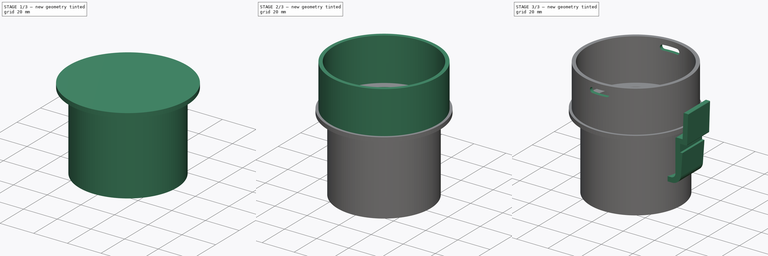
[diagram: build sequence overview — one tinted view per stage of 3, left to right]
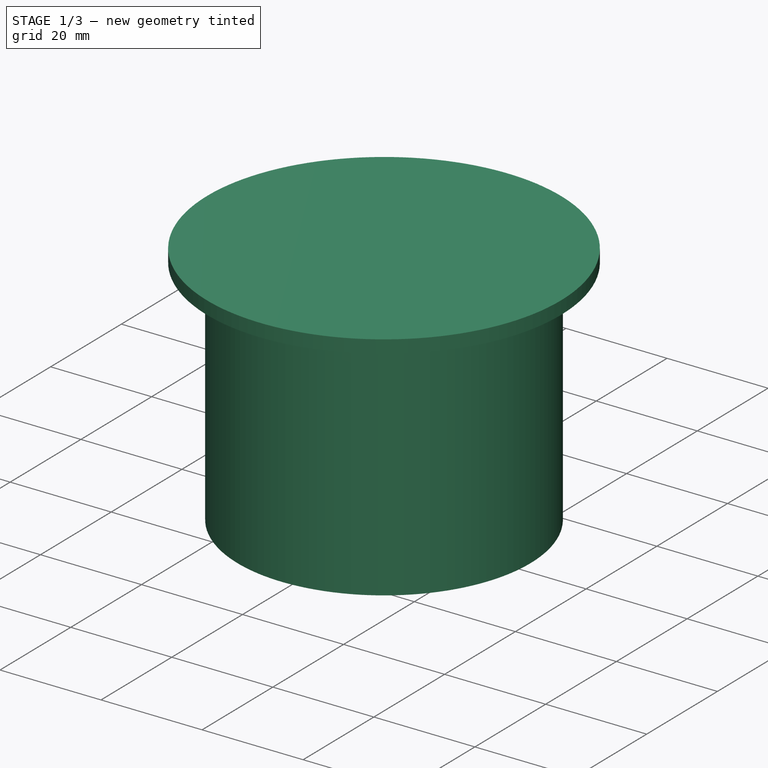
[diagram: stage 1 of 3 — iso view after this stage's code; geometry added in this stage tinted green]
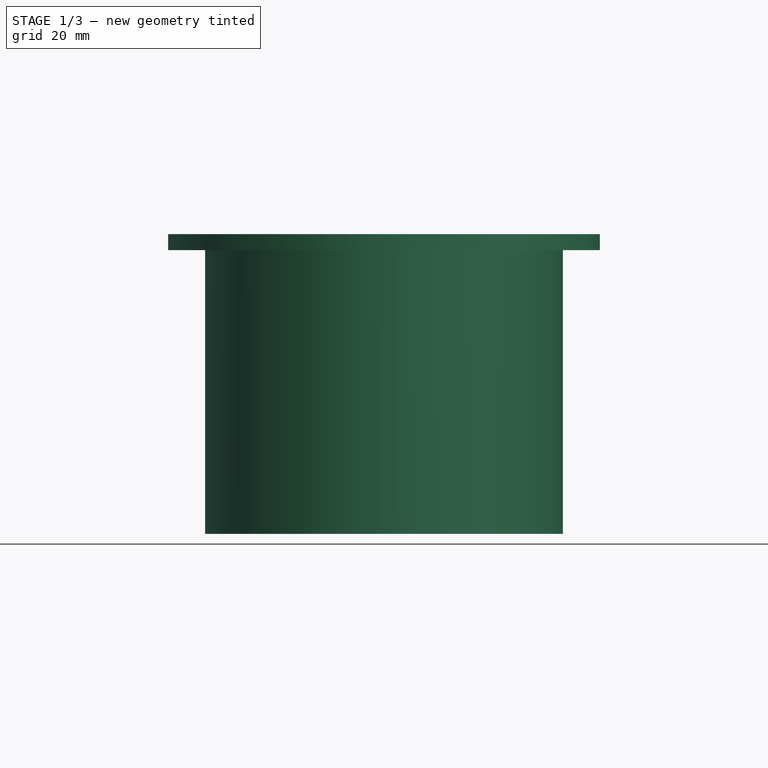
[diagram: stage 1 of 3 — front view after this stage's code; geometry added in this stage tinted green]
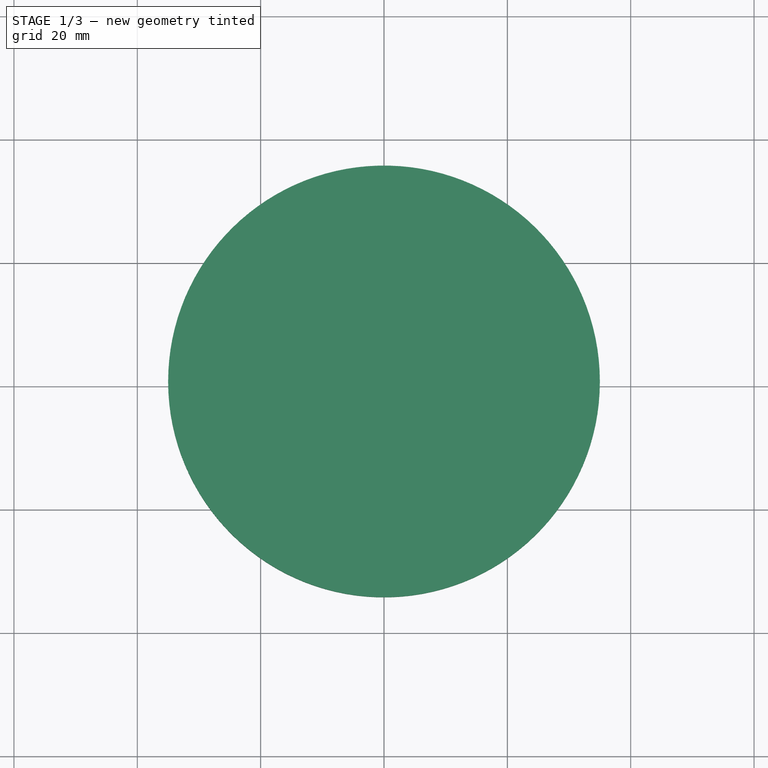
[diagram: stage 1 of 3 — top view after this stage's code; geometry added in this stage tinted green]
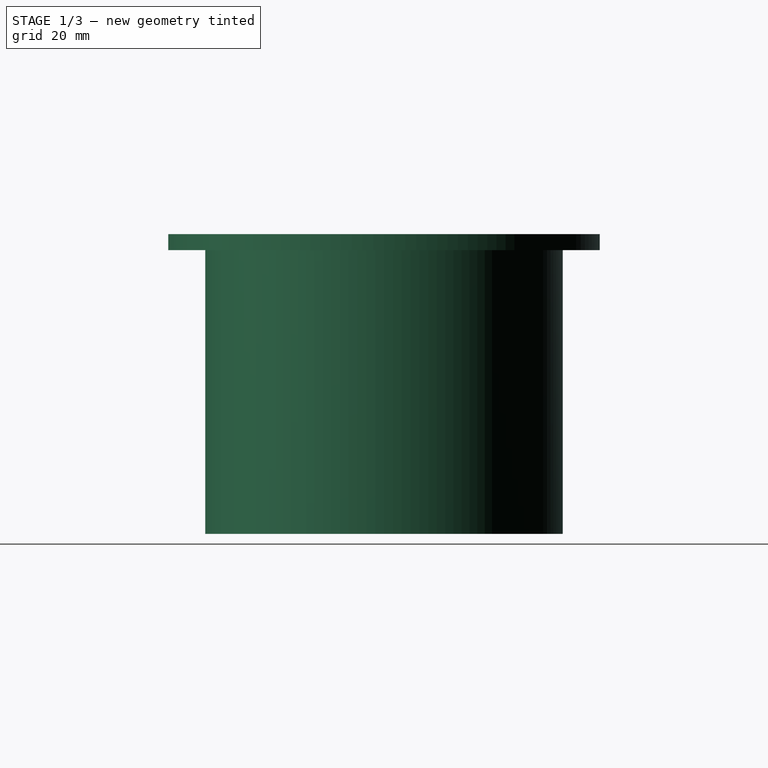
[diagram: stage 1 of 3 — right view after this stage's code; geometry added in this stage tinted green]
FCSTD DOCUMENT  (FreeCAD 0.21R33771 (Git))
Label: VacuumHoseConnector
License: All rights reserved
LicenseURL: https://en.wikipedia.org/wiki/All_rights_reserved
objects: Sketcher::SketchObject×7, PartDesign::Pad×4, PartDesign::Pocket×3, PartDesign::Body×1
note: 22 computed .brp shape members not serialized (recipe doc carries the construction recipe); baked Part::Feature solids carry a one-line shape summary decoded from their .brp

FEATURE [Sketcher::SketchObject] Sketch
  FullyConstrained = true
  MapMode = 5
  Support = -> [XY_Plane]
  sketch-geometry (1):
    g0: Circle CenterX=0 CenterY=0 CenterZ=0 NormalX=0 NormalY=0 NormalZ=1 AngleXU=0 Radius=29
  constraints (2):
    c: Coincident(g0,g-1)
    c: Radius(g0) = 29
FEATURE [PartDesign::Pad] Pad
  Direction = (0,0,1)
  Length = 46
  Length2 = 10
  Profile = -> Sketch
  ReferenceAxis = -> Sketch [N_Axis]
  Type = 0
FEATURE [Sketcher::SketchObject] Sketch001
  FullyConstrained = true
  MapMode = 5
  Placement = pos=(0,0,46) rot=(0,0,1;0rad)
  Support = -> [Pad]
  sketch-geometry (1):
    g0: Circle CenterX=0 CenterY=0 CenterZ=0 NormalX=0 NormalY=0 NormalZ=1 AngleXU=0 Radius=35
  constraints (2):
    c: Coincident(g0,g-1)
    c: Radius(g0) = 35
FEATURE [PartDesign::Pad] Pad001
  BaseFeature = -> Pad
  Direction = (0,0,1)
  Length = 2.6
  Length2 = 10
  Profile = -> Sketch001
  ReferenceAxis = -> Sketch001 [N_Axis]
  Type = 0
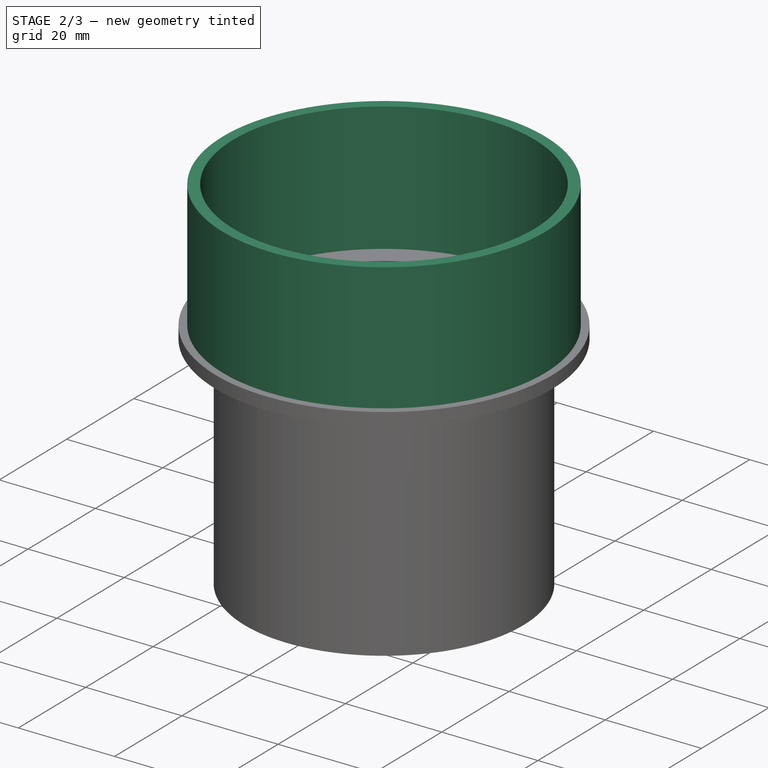
[diagram: stage 2 of 3 — iso view after this stage's code; geometry added in this stage tinted green]
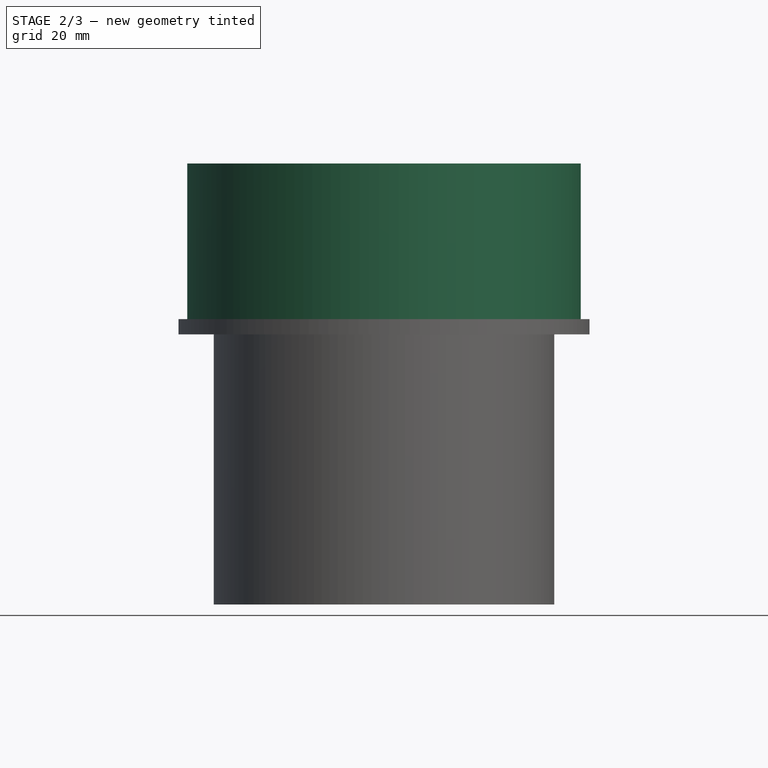
[diagram: stage 2 of 3 — front view after this stage's code; geometry added in this stage tinted green]
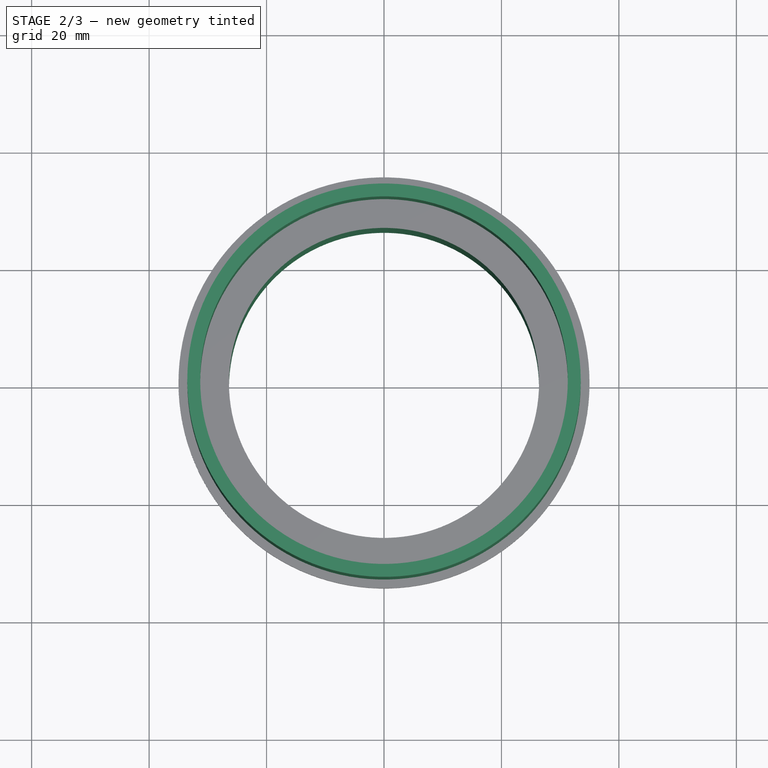
[diagram: stage 2 of 3 — top view after this stage's code; geometry added in this stage tinted green]
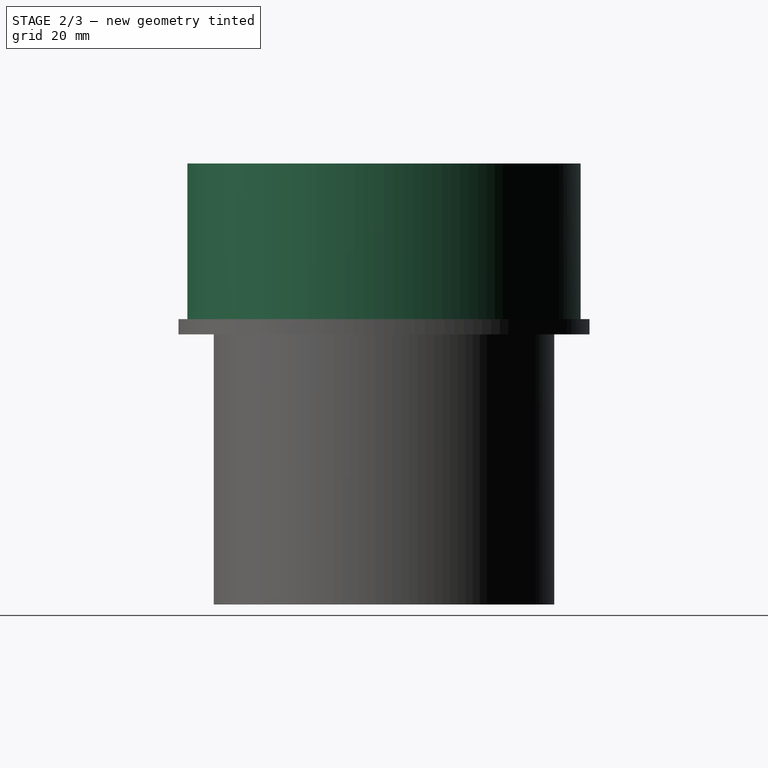
[diagram: stage 2 of 3 — right view after this stage's code; geometry added in this stage tinted green]
FEATURE [Sketcher::SketchObject] Sketch002
  FullyConstrained = true
  MapMode = 5
  Placement = pos=(0,0,48.6) rot=(0,0,1;0rad)
  Support = -> [Pad001]
  sketch-geometry (1):
    g0: Circle CenterX=0 CenterY=0 CenterZ=0 NormalX=0 NormalY=0 NormalZ=1 AngleXU=0 Radius=33.5
  constraints (2):
    c: Coincident(g0,g-1)
    c: Radius(g0) = 33.5
FEATURE [PartDesign::Pad] Pad002
  BaseFeature = -> Pad001
  Direction = (0,0,1)
  Length = 26.5
  Length2 = 10
  Profile = -> Sketch002
  ReferenceAxis = -> Sketch002 [N_Axis]
  Type = 0
FEATURE [Sketcher::SketchObject] Sketch003
  FullyConstrained = true
  MapMode = 5
  Placement = pos=(0,0,0) rot=(1,0,0;3.14159rad)
  Support = -> [Pad002]
  sketch-geometry (1):
    g0: Circle CenterX=0 CenterY=0 CenterZ=0 NormalX=0 NormalY=0 NormalZ=1 AngleXU=0 Radius=26.4
  constraints (2):
    c: Coincident(g0,g-1)
    c: Radius(g0) = 26.4
FEATURE [PartDesign::Pocket] Pocket
  BaseFeature = -> Pad002
  Direction = (0,0,1)
  Length = 5
  Length2 = 5
  Profile = -> Sketch003
  ReferenceAxis = -> Sketch003 [N_Axis]
  Type = 1
FEATURE [Sketcher::SketchObject] Sketch004
  FullyConstrained = true
  MapMode = 5
  Placement = pos=(0,0,75.1) rot=(0,0,1;0rad)
  Support = -> [Pocket]
  sketch-geometry (1):
    g0: Circle CenterX=0 CenterY=0 CenterZ=0 NormalX=0 NormalY=0 NormalZ=1 AngleXU=0 Radius=31.3
  constraints (2):
    c: Coincident(g0,g-1)
    c: Radius(g0) = 31.3
FEATURE [PartDesign::Pocket] Pocket001
  BaseFeature = -> Pocket
  Direction = (0,0,-1)
  Length = 26.75
  Length2 = 5
  Profile = -> Sketch004
  ReferenceAxis = -> Sketch004 [N_Axis]
  Type = 0
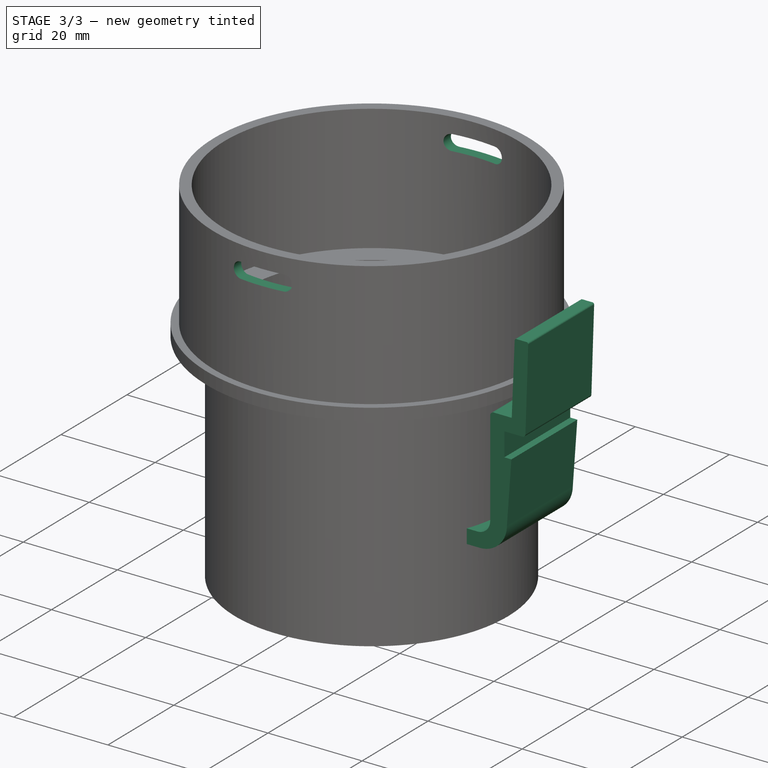
[diagram: stage 3 of 3 — iso view after this stage's code; geometry added in this stage tinted green]
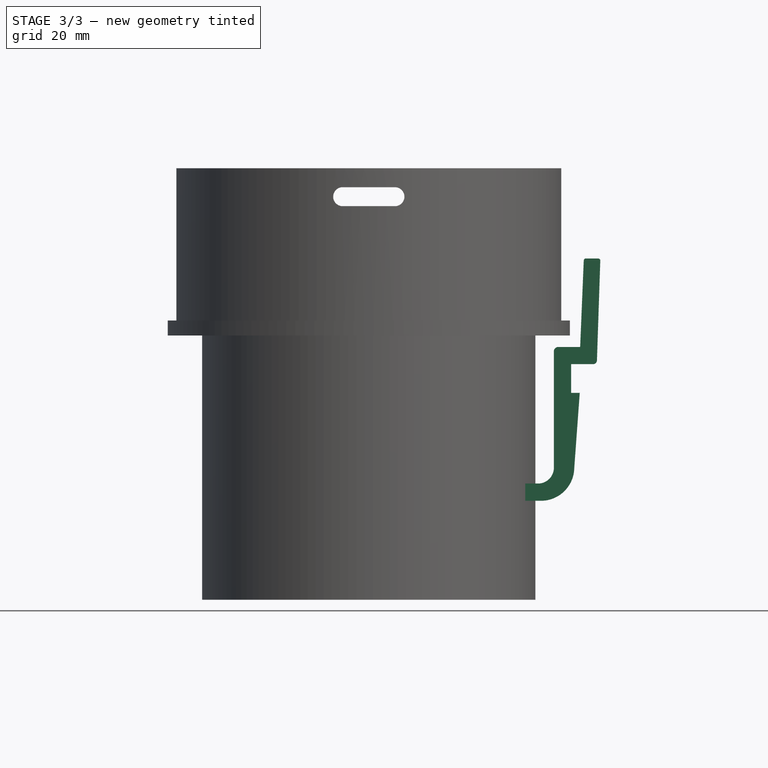
[diagram: stage 3 of 3 — front view after this stage's code; geometry added in this stage tinted green]
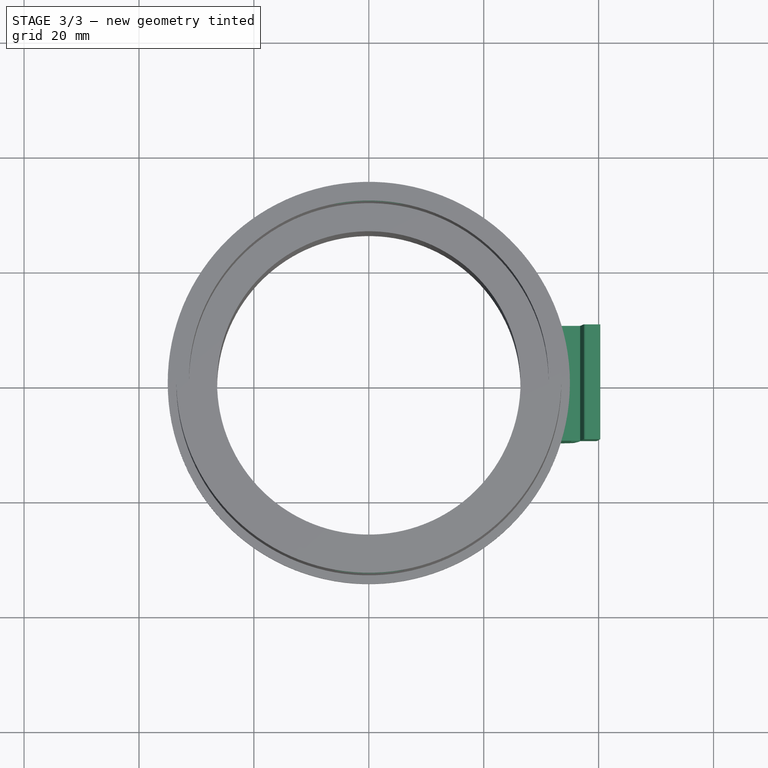
[diagram: stage 3 of 3 — top view after this stage's code; geometry added in this stage tinted green]
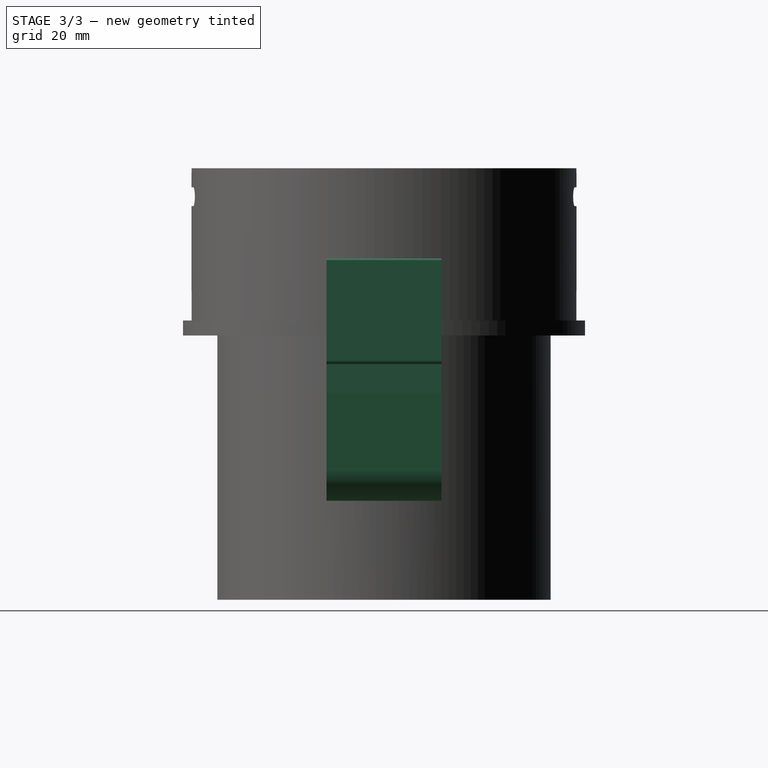
[diagram: stage 3 of 3 — right view after this stage's code; geometry added in this stage tinted green]
FEATURE [Sketcher::SketchObject] Sketch005
  ExternalGeometry = -> [Pocket001]
  FullyConstrained = false
  MapMode = 5
  Placement = pos=(0,0,0) rot=(1,0,0;1.5708rad)
  Support = -> [XZ_Plane]
  sketch-geometry (7):
    g0: ArcOfCircle CenterX=-4.55 CenterY=70.15 CenterZ=0 NormalX=0 NormalY=0 NormalZ=1 AngleXU=0 Radius=1.65 StartAngle=1.5708 EndAngle=4.71239
    g1: ArcOfCircle CenterX=4.55 CenterY=70.15 CenterZ=0 NormalX=0 NormalY=0 NormalZ=1 AngleXU=0 Radius=1.65 StartAngle=4.71239 EndAngle=7.85398
    g2: LineSegment StartX=-4.55 StartY=68.5 StartZ=0 EndX=4.55 EndY=68.5 EndZ=0
    g3: LineSegment StartX=4.55 StartY=71.8 StartZ=0 EndX=-4.55 EndY=71.8 EndZ=0
    g4: LineSegment StartX=-0.00341175 StartY=75.1 StartZ=0 EndX=-0.00341175 EndY=71.8 EndZ=0
    g5: LineSegment StartX=-6.2 StartY=70.15 StartZ=0 EndX=6.2 EndY=70.15 EndZ=0
    g6: LineSegment StartX=-4.55 StartY=71.8 StartZ=0 EndX=-4.55 EndY=68.5 EndZ=0
  constraints (18):
    c: Tangent(g0,g2) = -1.5708
    c: Tangent(g2,g1) = -1.5708
    c: Tangent(g1,g3) = -1.5708
    c: Tangent(g3,g0) = -1.5708
    c: Equal(g0,g1)
    c: PointOnObject(g4,g-3)
    c: PointOnObject(g4,g3)
    c: Vertical(g4)
    c: DistanceY(g4,g4) = 3.3
    c: PointOnObject(g5,g0)
    c: PointOnObject(g5,g1)
    c: Horizontal(g5)
    c: PointOnObject(g0,g5)
    c: Distance(g5) = 12.4
    c: Coincident(g6,g0)
    c: Equal(g4,g6)
    c: Coincident(g6,g0)
    c: Symmetric(g0,g1,g-2)
FEATURE [PartDesign::Pocket] Pocket002
  BaseFeature = -> Pocket001
  Direction = (0,1,2e-16)
  Length = 250
  Length2 = 5
  Midplane = true
  Profile = -> Sketch005
  ReferenceAxis = -> Sketch005 [N_Axis]
  Type = 1
FEATURE [Sketcher::SketchObject] Sketch006
  ExternalGeometry = -> [Pocket002]
  FullyConstrained = false
  MapMode = 5
  Placement = pos=(0,0,0) rot=(1,0,0;1.5708rad)
  Support = -> [XZ_Plane]
  sketch-geometry (21):
    g0: LineSegment StartX=26.7129 StartY=17.2233 StartZ=0 EndX=29.9535 EndY=17.2233 EndZ=0
    g1: LineSegment StartX=32.2096 StartY=43.2402 StartZ=0 EndX=32.2096 EndY=22.9821 EndZ=0
    g2: LineSegment StartX=29.4508 StartY=20.2233 StartZ=0 EndX=26.7129 EndY=20.2233 EndZ=0
    g3: LineSegment StartX=26.7129 StartY=20.2233 StartZ=0 EndX=26.7129 EndY=17.2233 EndZ=0
    g4: LineSegment StartX=29 StartY=18 StartZ=0 EndX=34 EndY=18 EndZ=0
    g5: LineSegment StartX=32.9694 StartY=44 StartZ=0 EndX=36.7834 EndY=44 EndZ=0
    g6: LineSegment StartX=36.7834 StartY=44 StartZ=0 EndX=37.4088 EndY=59.0491 EndZ=0
    g7: LineSegment StartX=37.7664 StartY=59.3922 StartZ=0 EndX=39.9316 EndY=59.3922 EndZ=0
    g8: LineSegment StartX=40.2869 StartY=59.0247 StartZ=0 EndX=39.7046 EndY=41.647 EndZ=0
    g9: LineSegment StartX=39.0355 StartY=41 StartZ=0 EndX=35.2105 EndY=41 EndZ=0
    g10: LineSegment StartX=36.7834 StartY=44 StartZ=0 EndX=39.7834 EndY=44 EndZ=0
    g11: LineSegment StartX=35.2105 StartY=44 StartZ=0 EndX=35.2105 EndY=41 EndZ=0
    g12: ArcOfCircle CenterX=32.9694 CenterY=43.2402 CenterZ=0 NormalX=0 NormalY=0 NormalZ=1 AngleXU=0 Radius=0.759792 StartAngle=1.5708 EndAngle=3.14159
    g13: ArcOfCircle CenterX=39.0355 CenterY=41.6694 CenterZ=0 NormalX=0 NormalY=0 NormalZ=1 AngleXU=0 Radius=0.669433 StartAngle=4.71239 EndAngle=6.24969
    g14: ArcOfCircle CenterX=29.4508 CenterY=22.9821 CenterZ=0 NormalX=0 NormalY=0 NormalZ=1 AngleXU=0 Radius=2.75883 StartAngle=4.71239 EndAngle=6.28319
    g15: ArcOfCircle CenterX=39.9316 CenterY=59.0367 CenterZ=0 NormalX=0 NormalY=0 NormalZ=1 AngleXU=0 Radius=0.355521 StartAngle=6.24969 EndAngle=7.85398
    g16: ArcOfCircle CenterX=37.7664 CenterY=59.0343 CenterZ=0 NormalX=0 NormalY=0 NormalZ=1 AngleXU=0 Radius=0.357917 StartAngle=1.5708 EndAngle=3.10006
    g17: ArcOfCircle CenterX=29.9535 CenterY=23.0286 CenterZ=0 NormalX=0 NormalY=0 NormalZ=1 AngleXU=0 Radius=5.80538 StartAngle=4.71239 EndAngle=6.2683
    g18: LineSegment StartX=35.7583 StartY=22.9422 StartZ=0 EndX=36.7105 EndY=36 EndZ=0
    g19: LineSegment StartX=35.2105 StartY=41 StartZ=0 EndX=35.2105 EndY=36 EndZ=0
    g20: LineSegment StartX=35.2105 StartY=36 StartZ=0 EndX=36.7105 EndY=36 EndZ=0
  constraints (43):
    c: Horizontal(g0)
    c: Vertical(g1)
    c: Coincident(g3,g2)
    c: Coincident(g3,g0)
    c: DistanceY(g3,g3) = 3
    c: Horizontal(g2)
    c: Vertical(g3)
    c: PointOnObject(g4,g-3)
    c: Horizontal(g4)
    c: Distance(g4,g-3) = 18
    c: Distance(g4,g4) = 5
    c: DistanceY(g4,g11) = 23
    c: Horizontal(g5)
    c: Coincident(g6,g5)
    c: Horizontal(g7)
    c: Horizontal(g9)
    c: Coincident(g10,g5)
    c: PointOnObject(g10,g8)
    c: Horizontal(g10)
    c: Distance(g10) = 3
    c: PointOnObject(g11,g5)
    c: Vertical(g11)
    c: Distance(g11) = 3
    c: Tangent(g1,g12) = -1.5708
    c: Tangent(g5,g12) = 1.5708
    c: Tangent(g8,g13) = 1.5708
    c: Tangent(g9,g13) = 1.5708
    c: Tangent(g1,g14) = 1.5708
    c: Tangent(g2,g14) = 1.5708
    c: Tangent(g7,g15) = 1.5708
    c: Tangent(g8,g15) = 1.5708
    c: Tangent(g6,g16) = 1.5708
    c: Tangent(g7,g16) = 1.5708
    c: Tangent(g0,g17) = -1.5708
    c: Coincident(g18,g17)
    c: Vertical(g19)
    c: Coincident(g20,g19)
    c: Horizontal(g20)
    c: Coincident(g18,g20)
    c: Distance(g19) = 5
    c: Distance(g20) = 1.5
    c: Coincident(g9,g11)
    c: Coincident(g19,g9)
FEATURE [PartDesign::Pad] Pad003
  BaseFeature = -> Pocket002
  Direction = (0,-1,-2e-16)
  Length = 10
  Length2 = 10
  Profile = -> Sketch006
  ReferenceAxis = -> Sketch006 [N_Axis]
  Type = 4
FEATURE [PartDesign::Body] Body
  Group = -> [Sketch,Pad,Sketch001,Pad001,Sketch002,Pad002,Sketch003,Pocket,Sketch004,Pocket001,Sketch005,Pocket002,Sketch006,Pad003]
  Origin = -> Origin
  Tip = -> Pad003
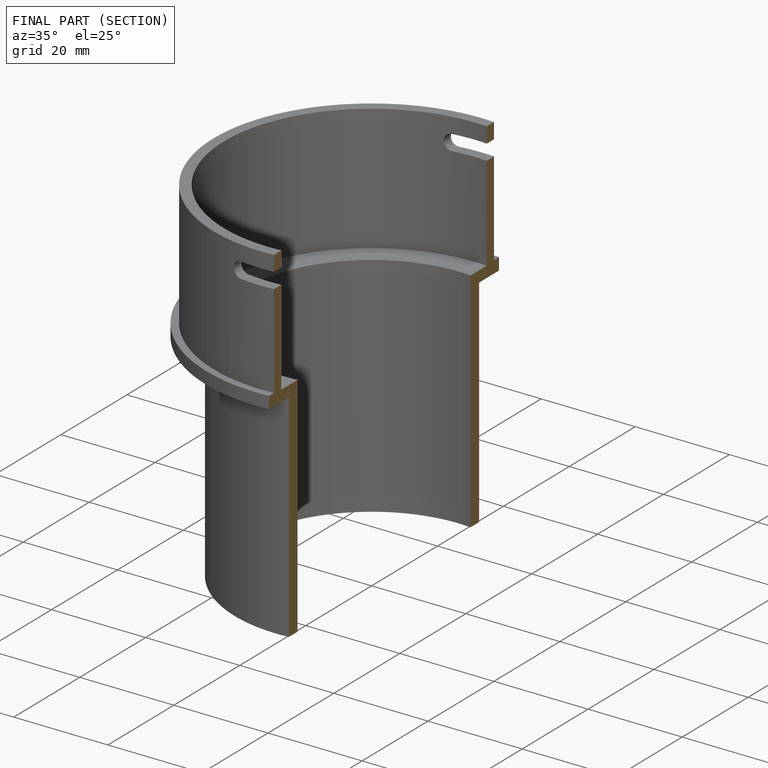
[diagram: finished part — half-section view (interior)]
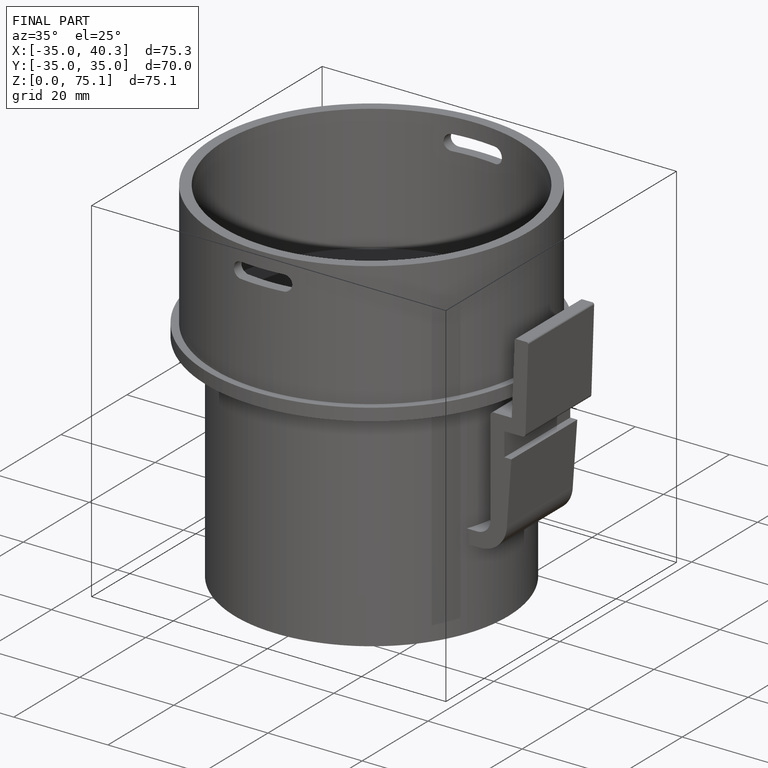
[diagram: finished part — iso view with bounding-box wireframe]
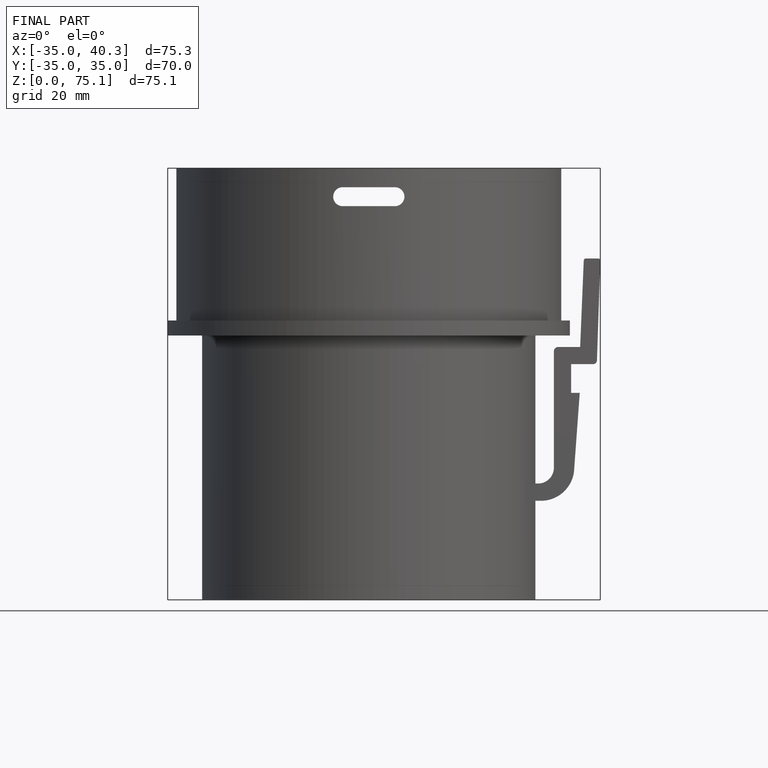
[diagram: finished part — front view with bounding-box wireframe]
